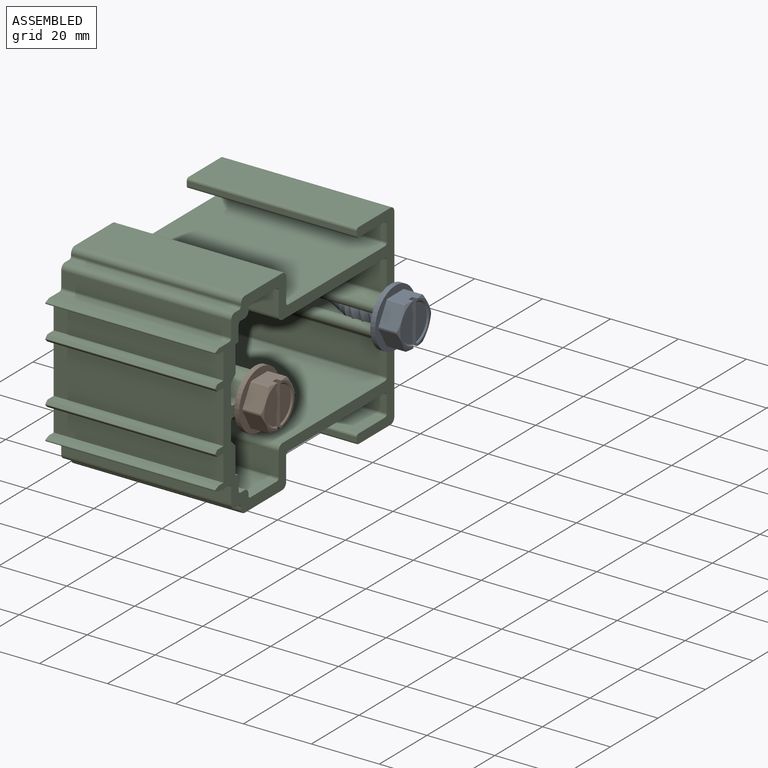
[diagram: assembled view]
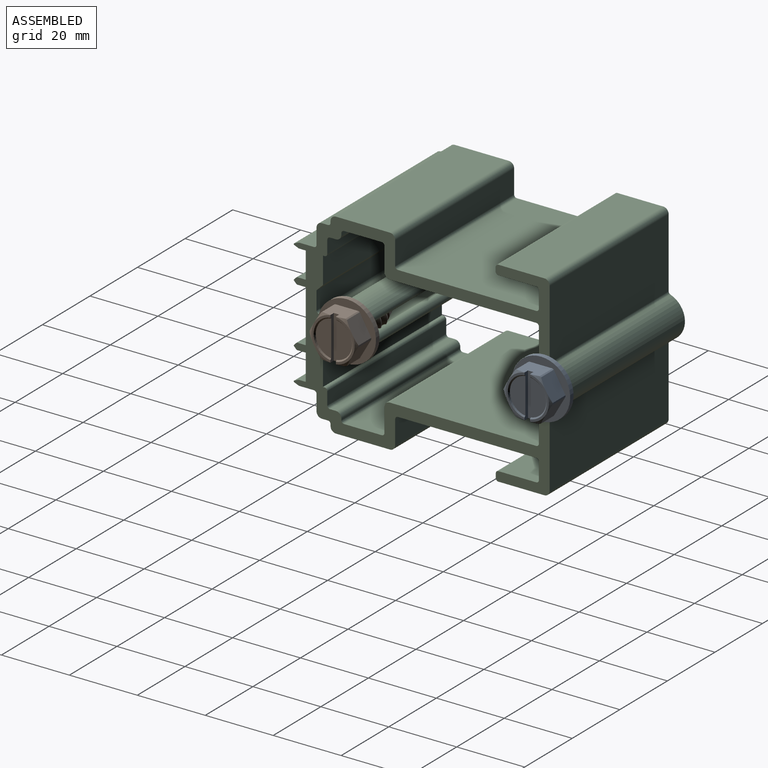
[diagram: assembled view, second angle]
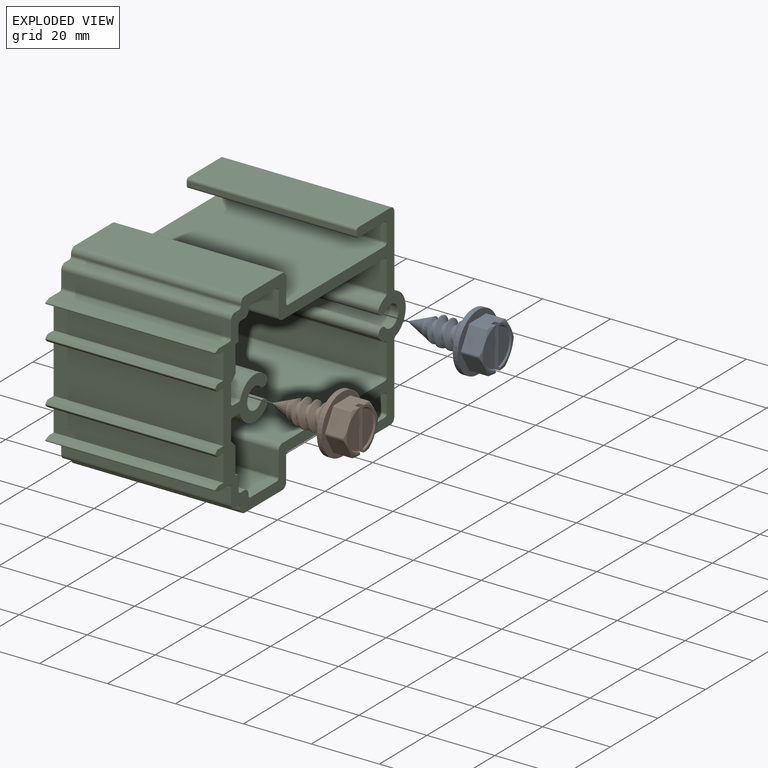
[diagram: exploded view]
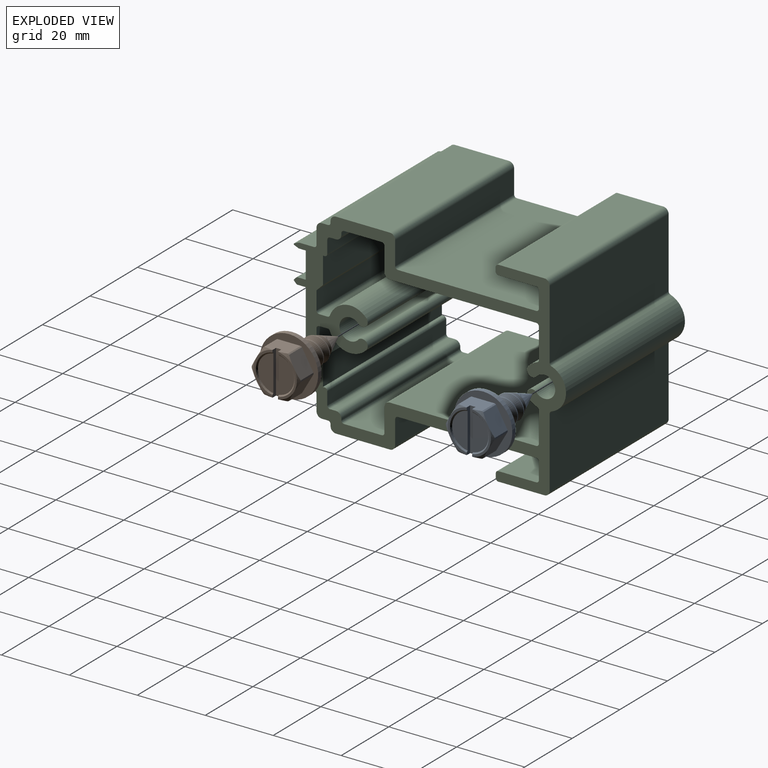
[diagram: exploded view, second angle]
ASSEMBLY  parts=3 mates=4
PART A: 46 faces, bbox 17.9x17.9x27 mm
  f0: cylinder r=2.43mm len=13.48mm, axis (0,0,-1), area 51.5mm2, adj f2,f3,f4,f5,f6,f7,f8,f9
  f1: cylinder r=3.96mm len=9.79mm, axis (0,0,-1), area 30.5mm2, adj f2,f3,f7,f8,f9,f10,f11,f12
  f2: bspline ~9.15x7.92mm, area 25.3mm2, adj f0,f1,f4,f12,f14,f15
  f3: bspline ~9.15x7.92mm, area 31.1mm2, adj f0,f1,f5,f13,f14,f15
  f4: bspline ~8.01x5.94mm, area 1.1mm2, adj f0,f2,f15
  f5: bspline ~9.15x7.92mm, area 10mm2, adj f0,f3,f6,f15
  f6: bspline ~6.86x2.75mm, area 0mm2, adj f0,f5,f15
  f7: plane 17.91x17.91mm, normal (0,0,-1), area 200.3mm2, adj f0,f1,f10,f11,f18
  f8: bspline ~9.15x7.92mm, area 53.6mm2, adj f0,f1,f10,f12
  f9: bspline ~7.92x7.9mm, area 53.6mm2, adj f0,f1,f11,f13
  f10: bspline ~9.15x7.92mm, area 29.7mm2, adj f0,f1,f7,f8
  f11: bspline ~8.01x7.92mm, area 15mm2, adj f0,f1,f7,f9
  f12: bspline ~9.15x7.92mm, area 35.7mm2, adj f0,f1,f2,f8
  f13: bspline ~9.15x7.92mm, area 35.7mm2, adj f0,f1,f3,f9
  f14: cone r=3.96mm half-angle=22.5deg, axis (0,0,1), area 6.8mm2, adj f1,f2,f3,f15
  f15: cone r=3.96mm half-angle=22.5deg, axis (0,0,1), area 74.9mm2, adj f0,f2,f3,f4,f5,f6,f14,f16
  f16: plane 0.25x0.25mm, normal (0,0,-1), area 0.1mm2, adj f15
  f17: plane 17.17x17.17mm, normal (0,0,1), area 92mm2, adj f18,f30,f31,f32,f33,f34,f35,f36
  f18: cylinder r=8.59mm len=17.17mm, axis (0,0,-1), area 78.1mm2, adj f7,f17
  f19: plane 12.6x5.56mm, normal (0,0,1), area 11mm2, adj f21,f22,f25,f26,f43
  f20: plane 12.6x5.56mm, normal (0,0,1), area 11mm2, adj f23,f27,f28,f29,f44
  f21: cone r=6.35mm half-angle=65deg, axis (0,0,-1), area 2.3mm2, adj f19,f25,f34,f35,f36
  f22: cone r=6.35mm half-angle=65deg, axis (0,0,-1), area 2.4mm2, adj f19,f33,f34,f37
  f23: plane 12.7x1.45mm, normal (0,-1,0), area 14.4mm2, adj f20,f24,f27,f28,f32,f35,f44,f45
  f24: plane 12.7x1.59mm, normal (0,0,1), area 20.2mm2, adj f23,f25,f32,f35
  f25: plane 12.7x1.45mm, normal (0,1,0), area 14.4mm2, adj f19,f21,f24,f26,f32,f35,f42,f43
  f26: cone r=6.35mm half-angle=65deg, axis (0,0,-1), area 2.3mm2, adj f19,f25,f32,f33,f38
  f27: cone r=6.35mm half-angle=65deg, axis (0,0,-1), area 2.3mm2, adj f20,f23,f31,f32,f39
  f28: cone r=6.35mm half-angle=65deg, axis (0,0,-1), area 2.3mm2, adj f20,f23,f30,f35,f41
  f29: cone r=6.35mm half-angle=65deg, axis (0,0,-1), area 2.4mm2, adj f20,f30,f31,f40
  f30: plane 5.9x5.79mm, normal (0.5,0.87,0), area 38.5mm2, adj f17,f28,f29,f40,f41
  f31: plane 5.9x5.79mm, normal (-0.5,0.87,0), area 38.5mm2, adj f17,f27,f29,f39,f40
  f32: plane 6.81x5.77mm, normal (-1,0,0), area 36.2mm2, adj f17,f23,f24,f25,f26,f27,f38,f39
  f33: plane 5.9x5.79mm, normal (-0.5,-0.87,0), area 38.5mm2, adj f17,f22,f26,f37,f38
  f34: plane 5.9x5.79mm, normal (0.5,-0.87,0), area 38.5mm2, adj f17,f21,f22,f36,f37
  f35: plane 6.81x5.77mm, normal (1,0,0), area 36.2mm2, adj f17,f21,f23,f24,f25,f28,f36,f41
  f36: cylinder r=7.21mm len=5.39mm, axis (0,0,-1), area 2.4mm2, adj f17,f21,f34,f35
  f37: cylinder r=7.21mm len=5.39mm, axis (0,0,-1), area 2.4mm2, adj f17,f22,f33,f34
  f38: cylinder r=7.21mm len=5.39mm, axis (0,0,-1), area 2.4mm2, adj f17,f26,f32,f33
  f39: cylinder r=7.21mm len=5.39mm, axis (0,0,-1), area 2.4mm2, adj f17,f27,f31,f32
  f40: cylinder r=7.21mm len=5.39mm, axis (0,0,-1), area 2.4mm2, adj f17,f29,f30,f31
  f41: cylinder r=7.21mm len=5.39mm, axis (0,0,-1), area 2.4mm2, adj f17,f28,f30,f35
  f42: plane 10.59x4.56mm, normal (0,0,1), area 36.5mm2, adj f25,f43
  f43: cone r=5.71mm half-angle=45deg, axis (0,0,1), area 8.1mm2, adj f19,f25,f42
  f44: cone r=5.71mm half-angle=45deg, axis (0,0,1), area 8.1mm2, adj f20,f23,f45
  f45: plane 10.59x4.56mm, normal (0,0,1), area 36.5mm2, adj f23,f44
PART B: same geometry as A
PART C: 135 faces, bbox 50x57.7x80.1 mm
  f0: plane 50x1.98mm, normal (0,1,0), area 98.9mm2, adj f1,f132,f133,f134
  f1: plane 50x7.77mm, normal (0,0,-1), area 388.6mm2, adj f0,f2,f133,f134
  f2: plane 50x2.51mm, normal (0,-1,0), area 125.7mm2, adj f1,f3,f133,f134
  f3: cylinder r=0.25mm len=50mm, axis (-1,0,0), area 10mm2, adj f2,f4,f133,f134
  f4: plane 50x0.74mm, normal (0,-0.71,-0.71), area 52.1mm2, adj f3,f5,f133,f134
  f5: cylinder r=0.25mm len=50mm, axis (-1,0,0), area 19.9mm2, adj f4,f6,f133,f134
  f6: plane 50x0.74mm, normal (0,0.71,-0.71), area 52.1mm2, adj f5,f7,f133,f134
  f7: cylinder r=0.25mm len=50mm, axis (-1,0,0), area 10mm2, adj f6,f8,f133,f134
  f8: plane 50x2.51mm, normal (0,1,0), area 125.7mm2, adj f7,f9,f133,f134
  f9: plane 50x15.45mm, normal (0,0,-1), area 772.3mm2, adj f8,f10,f133,f134
  f10: plane 50x2.51mm, normal (0,-1,0), area 125.7mm2, adj f9,f11,f133,f134
  f11: cylinder r=0.25mm len=50mm, axis (-1,0,0), area 10mm2, adj f10,f12,f133,f134
  f12: plane 50x0.74mm, normal (0,-0.71,-0.71), area 52.1mm2, adj f11,f13,f133,f134
  f13: cylinder r=0.25mm len=50mm, axis (-1,0,0), area 19.9mm2, adj f12,f14,f133,f134
  f14: plane 50x0.74mm, normal (0,0.71,-0.71), area 52.1mm2, adj f13,f15,f133,f134
  f15: cylinder r=0.25mm len=50mm, axis (-1,0,0), area 10mm2, adj f14,f16,f133,f134
  f16: plane 50x2.51mm, normal (0,1,0), area 125.7mm2, adj f15,f17,f133,f134
  f17: plane 50x7.77mm, normal (0,0,-1), area 388.6mm2, adj f16,f18,f133,f134
  f18: plane 50x1.98mm, normal (0,-1,0), area 98.9mm2, adj f17,f19,f133,f134
  f19: cylinder r=0.25mm len=50mm, axis (-1,0,0), area 5mm2, adj f18,f20,f133,f134
  f20: plane 50x1.27mm, normal (0,-0.92,-0.38), area 68.9mm2, adj f19,f21,f133,f134
  f21: cylinder r=0.25mm len=50mm, axis (-1,0,0), area 29.9mm2, adj f20,f22,f133,f134
  f22: plane 50x1.3mm, normal (0,0.92,-0.38), area 70.5mm2, adj f21,f23,f133,f134
  f23: cylinder r=0.25mm len=50mm, axis (-1,0,0), area 5mm2, adj f22,f24,f133,f134
  f24: plane 50x4.35mm, normal (0,1,0), area 217.4mm2, adj f23,f25,f133,f134
  f25: cylinder r=0.79mm len=50mm, axis (-1,0,0), area 61.8mm2, adj f24,f26,f133,f134
  f26: plane 50x4.6mm, normal (0,0,-1), area 229.9mm2, adj f25,f27,f133,f134
  f27: cylinder r=1.57mm len=50mm, axis (-1,0,0), area 123.7mm2, adj f26,f28,f133,f134
  f28: plane 50x1.77mm, normal (0,1,0), area 88.4mm2, adj f27,f29,f133,f134
  f29: cylinder r=0.79mm len=50mm, axis (-1,0,0), area 61.8mm2, adj f28,f30,f133,f134
  f30: plane 50x0.48mm, normal (0,0,-1), area 24.1mm2, adj f29,f31,f133,f134
  f31: cylinder r=1.57mm len=50mm, axis (-1,0,0), area 123.7mm2, adj f30,f32,f133,f134
  f32: plane 50x15.88mm, normal (0,1,0), area 793.8mm2, adj f31,f33,f133,f134
  f33: cylinder r=1.57mm len=50mm, axis (-1,0,0), area 123.7mm2, adj f32,f34,f133,f134
  f34: plane 50x6.95mm, normal (0,0,1), area 347.3mm2, adj f33,f35,f133,f134
  f35: cylinder r=0.79mm len=50mm, axis (-1,0,0), area 61.8mm2, adj f34,f36,f133,f134
  f36: plane 50x40.73mm, normal (0,1,0), area 2036.3mm2, adj f35,f37,f133,f134
  f37: cylinder r=0.79mm len=50mm, axis (-1,0,0), area 61.8mm2, adj f36,f38,f133,f134
  f38: plane 50x4.94mm, normal (0,0,-1), area 247mm2, adj f37,f39,f133,f134
  f39: cylinder r=0.79mm len=50mm, axis (-1,0,0), area 61.8mm2, adj f38,f40,f133,f134
  f40: plane 50x11.13mm, normal (0,-1,0), area 556.3mm2, adj f39,f41,f133,f134
  f41: cylinder r=0.79mm len=50mm, axis (-1,0,0), area 61.8mm2, adj f40,f42,f133,f134
  f42: plane 50x1.22mm, normal (0,0,-1), area 61mm2, adj f41,f43,f133,f134
  f43: cylinder r=0.79mm len=50mm, axis (-1,0,0), area 61.8mm2, adj f42,f44,f133,f134
  f44: plane 50x13.51mm, normal (0,1,0), area 675.6mm2, adj f43,f45,f133,f134
  f45: cylinder r=1.57mm len=50mm, axis (-1,0,0), area 123.7mm2, adj f44,f46,f133,f134
  f46: plane 50x20.54mm, normal (0,0,1), area 1026.8mm2, adj f45,f47,f133,f134
  f47: cylinder r=0.79mm len=50mm, axis (-1,0,0), area 48.7mm2, adj f46,f48,f133,f134
  f48: cylinder r=6.35mm len=50mm, axis (-1,0,0), area 785.6mm2, adj f47,f49,f133,f134
  f49: cylinder r=0.79mm len=50mm, axis (-1,0,0), area 48.7mm2, adj f48,f50,f133,f134
  f50: plane 50x20.54mm, normal (0,0,1), area 1026.8mm2, adj f49,f51,f133,f134
  f51: cylinder r=1.57mm len=50mm, axis (-1,0,0), area 123.7mm2, adj f50,f52,f133,f134
  f52: plane 50x13.51mm, normal (0,-1,0), area 675.6mm2, adj f51,f53,f133,f134
  f53: cylinder r=0.79mm len=50mm, axis (-1,0,0), area 61.8mm2, adj f52,f54,f133,f134
  f54: plane 50x1.22mm, normal (0,0,-1), area 61mm2, adj f53,f55,f133,f134
  f55: cylinder r=0.79mm len=50mm, axis (-1,0,0), area 61.8mm2, adj f54,f56,f133,f134
  f56: plane 50x11.13mm, normal (0,1,0), area 556.3mm2, adj f55,f57,f133,f134
  f57: cylinder r=0.79mm len=50mm, axis (-1,0,0), area 61.8mm2, adj f56,f58,f133,f134
  f58: plane 50x4.94mm, normal (0,0,-1), area 247mm2, adj f57,f59,f133,f134
  f59: cylinder r=0.79mm len=50mm, axis (-1,0,0), area 61.8mm2, adj f58,f60,f133,f134
  f60: plane 50x40.73mm, normal (0,-1,0), area 2036.3mm2, adj f59,f61,f133,f134
  f61: cylinder r=0.79mm len=50mm, axis (-1,0,0), area 61.8mm2, adj f60,f62,f133,f134
  f62: plane 50x6.95mm, normal (0,0,1), area 347.3mm2, adj f61,f63,f133,f134
  f63: cylinder r=1.57mm len=50mm, axis (-1,0,0), area 123.7mm2, adj f62,f64,f133,f134
  f64: plane 50x15.88mm, normal (0,-1,0), area 793.8mm2, adj f63,f65,f133,f134
  f65: cylinder r=1.57mm len=50mm, axis (-1,0,0), area 123.7mm2, adj f64,f66,f133,f134
  f66: plane 50x0.48mm, normal (0,0,-1), area 24.1mm2, adj f65,f67,f133,f134
  f67: cylinder r=0.79mm len=50mm, axis (-1,0,0), area 61.8mm2, adj f66,f68,f133,f134
  f68: plane 50x1.77mm, normal (0,-1,0), area 88.4mm2, adj f67,f69,f133,f134
  f69: cylinder r=1.57mm len=50mm, axis (-1,0,0), area 123.7mm2, adj f68,f70,f133,f134
  f70: plane 50x4.6mm, normal (0,0,-1), area 229.9mm2, adj f69,f71,f133,f134
  f71: cylinder r=0.79mm len=50mm, axis (-1,0,0), area 61.8mm2, adj f70,f72,f133,f134
  f72: plane 50x4.35mm, normal (0,-1,0), area 217.4mm2, adj f71,f73,f133,f134
  f73: cylinder r=0.25mm len=50mm, axis (-1,0,0), area 5mm2, adj f72,f74,f133,f134
  f74: plane 50x1.3mm, normal (0,-0.92,-0.38), area 70.5mm2, adj f73,f75,f133,f134
  f75: cylinder r=0.25mm len=50mm, axis (-1,0,0), area 29.9mm2, adj f74,f76,f133,f134
  f76: plane 50x1.27mm, normal (0,0.92,-0.38), area 68.9mm2, adj f75,f132,f133,f134
  f77: plane 50x7.85mm, normal (0,0,1), area 392.4mm2, adj f78,f131,f133,f134
  f78: plane 50x0.5mm, normal (0,1,0), area 24.8mm2, adj f77,f79,f133,f134
  f79: cylinder r=0.79mm len=50mm, axis (-1,0,0), area 61.8mm2, adj f78,f80,f133,f134
  f80: plane 50x3.78mm, normal (0,0,1), area 188.9mm2, adj f79,f81,f133,f134
  f81: cylinder r=0.79mm len=50mm, axis (-1,0,0), area 61.8mm2, adj f80,f82,f133,f134
  f82: plane 50x1.77mm, normal (0,1,0), area 88.4mm2, adj f81,f83,f133,f134
  f83: cylinder r=1.57mm len=50mm, axis (-1,0,0), area 123.7mm2, adj f82,f84,f133,f134
  f84: plane 50x0.49mm, normal (0,0,1), area 24.5mm2, adj f83,f85,f133,f134
  f85: cylinder r=0.79mm len=50mm, axis (-1,0,0), area 61.8mm2, adj f84,f86,f133,f134
  f86: plane 50x11.1mm, normal (0,1,0), area 555mm2, adj f85,f87,f133,f134
  f87: cylinder r=0.79mm len=50mm, axis (-1,0,0), area 61.8mm2, adj f86,f88,f133,f134
  f88: plane 50x6.95mm, normal (0,0,-1), area 347.3mm2, adj f87,f89,f133,f134
  f89: cylinder r=1.57mm len=50mm, axis (-1,0,0), area 123.7mm2, adj f88,f90,f133,f134
  f90: plane 50x43.11mm, normal (0,1,0), area 2155.7mm2, adj f89,f91,f133,f134
  f91: cylinder r=0.79mm len=50mm, axis (-1,0,0), area 61.8mm2, adj f90,f92,f133,f134
  f92: plane 50x8.87mm, normal (0,0,-1), area 443.3mm2, adj f91,f93,f133,f134
  f93: cylinder r=0.79mm len=50mm, axis (-1,0,0), area 48.3mm2, adj f92,f94,f133,f134
  f94: cylinder r=6.35mm len=50mm, axis (-1,0,0), area 157.5mm2, adj f93,f95,f133,f134
  f95: cylinder r=1.59mm len=50mm, axis (-1,0,0), area 249.4mm2, adj f94,f96,f133,f134
  f96: cylinder r=3.17mm len=50mm, axis (-1,0,0), area 765.8mm2, adj f95,f97,f133,f134
  f97: cylinder r=1.59mm len=50mm, axis (-1,0,0), area 249.4mm2, adj f96,f98,f133,f134
  f98: cylinder r=6.35mm len=50mm, axis (-1,0,0), area 157.5mm2, adj f97,f99,f133,f134
  f99: cylinder r=0.79mm len=50mm, axis (-1,0,0), area 48.3mm2, adj f98,f100,f133,f134
  f100: plane 50x8.87mm, normal (0,0,-1), area 443.3mm2, adj f99,f101,f133,f134
  f101: cylinder r=0.79mm len=50mm, axis (-1,0,0), area 61.8mm2, adj f100,f102,f133,f134
  f102: plane 50x43.11mm, normal (0,-1,0), area 2155.7mm2, adj f101,f103,f133,f134
  f103: cylinder r=1.57mm len=50mm, axis (-1,0,0), area 123.7mm2, adj f102,f104,f133,f134
  f104: plane 50x6.95mm, normal (0,0,-1), area 347.3mm2, adj f103,f105,f133,f134
  f105: cylinder r=0.79mm len=50mm, axis (-1,0,0), area 61.8mm2, adj f104,f106,f133,f134
  f106: plane 50x11.1mm, normal (0,-1,0), area 555mm2, adj f105,f107,f133,f134
  f107: cylinder r=0.79mm len=50mm, axis (-1,0,0), area 61.8mm2, adj f106,f108,f133,f134
  f108: plane 50x0.49mm, normal (0,0,1), area 24.5mm2, adj f107,f109,f133,f134
  f109: cylinder r=1.57mm len=50mm, axis (-1,0,0), area 123.7mm2, adj f108,f110,f133,f134
  f110: plane 50x1.77mm, normal (0,-1,0), area 88.4mm2, adj f109,f111,f133,f134
  f111: cylinder r=0.79mm len=50mm, axis (-1,0,0), area 61.8mm2, adj f110,f112,f133,f134
  f112: plane 50x3.78mm, normal (0,0,1), area 188.9mm2, adj f111,f113,f133,f134
  f113: cylinder r=0.79mm len=50mm, axis (-1,0,0), area 61.8mm2, adj f112,f114,f133,f134
  f114: plane 50x0.5mm, normal (0,-1,0), area 24.8mm2, adj f113,f115,f133,f134
  f115: plane 50x7.85mm, normal (0,0,1), area 392.4mm2, adj f114,f116,f133,f134
  f116: plane 50x1.91mm, normal (0,-0.71,0.71), area 134.7mm2, adj f115,f117,f133,f134
  f117: plane 50x5.35mm, normal (0,0,1), area 267.4mm2, adj f116,f118,f133,f134
  f118: cylinder r=0.79mm len=50mm, axis (-1,0,0), area 61.8mm2, adj f117,f119,f133,f134
  f119: plane 50x2.43mm, normal (0,1,0), area 121.3mm2, adj f118,f120,f133,f134
  f120: cylinder r=0.79mm len=50mm, axis (-1,0,0), area 48.5mm2, adj f119,f121,f133,f134
  f121: cylinder r=6.35mm len=50mm, axis (-1,0,0), area 658.1mm2, adj f120,f122,f133,f134
  f122: cylinder r=1.59mm len=50mm, axis (-1,0,0), area 249.4mm2, adj f121,f123,f133,f134
  f123: cylinder r=3.17mm len=50mm, axis (-1,0,0), area 382.9mm2, adj f122,f124,f133,f134
  f124: cylinder r=3.17mm len=50mm, axis (-1,0,0), area 382.9mm2, adj f123,f125,f133,f134
  f125: cylinder r=1.59mm len=50mm, axis (-1,0,0), area 249.4mm2, adj f124,f126,f133,f134
  f126: cylinder r=6.35mm len=50mm, axis (-1,0,0), area 658.1mm2, adj f125,f127,f133,f134
  f127: cylinder r=0.79mm len=50mm, axis (-1,0,0), area 48.5mm2, adj f126,f128,f133,f134
  f128: plane 50x2.43mm, normal (0,-1,0), area 121.3mm2, adj f127,f129,f133,f134
  f129: cylinder r=0.79mm len=50mm, axis (-1,0,0), area 61.8mm2, adj f128,f130,f133,f134
  f130: plane 50x5.35mm, normal (0,0,1), area 267.4mm2, adj f129,f131,f133,f134
  f131: plane 50x1.91mm, normal (0,0.71,0.71), area 134.7mm2, adj f77,f130,f133,f134
  f132: cylinder r=0.25mm len=50mm, axis (-1,0,0), area 5mm2, adj f0,f76,f133,f134
  f133: plane 80.12x57.71mm, normal (1,0,0), area 1086.4mm2, adj f0,f1,f2,f3,f4,f5,f6,f7
  f134: plane 80.12x57.71mm, normal (-1,0,0), area 1086.4mm2, adj f0,f1,f2,f3,f4,f5,f6,f7
PLACE A rot(axis=(0,1,0),90deg) t=(453.32,177.13,-118.8)mm
PLACE B rot(axis=(0,1,0),90deg) t=(453.32,119.98,-118.8)mm
PLACE C rot(axis=(-1,0,0),90deg) t=(403.32,143.42,-118.8)mm
MATE cylindrical A.f0 <-> C.f96  axis (-1,0,0) through (453.32,177.13,-118.8)mm
MATE cylindrical B.f0 <-> C.f121  axis (-1,0,0) through (453.32,119.98,-118.8)mm
MATE planar A.f0 <-> C.f133  axis (-1,0,0) through (453.32,177.13,-118.8)mm
MATE planar B.f0 <-> C.f133  axis (-1,0,0) through (453.32,119.98,-118.8)mm
